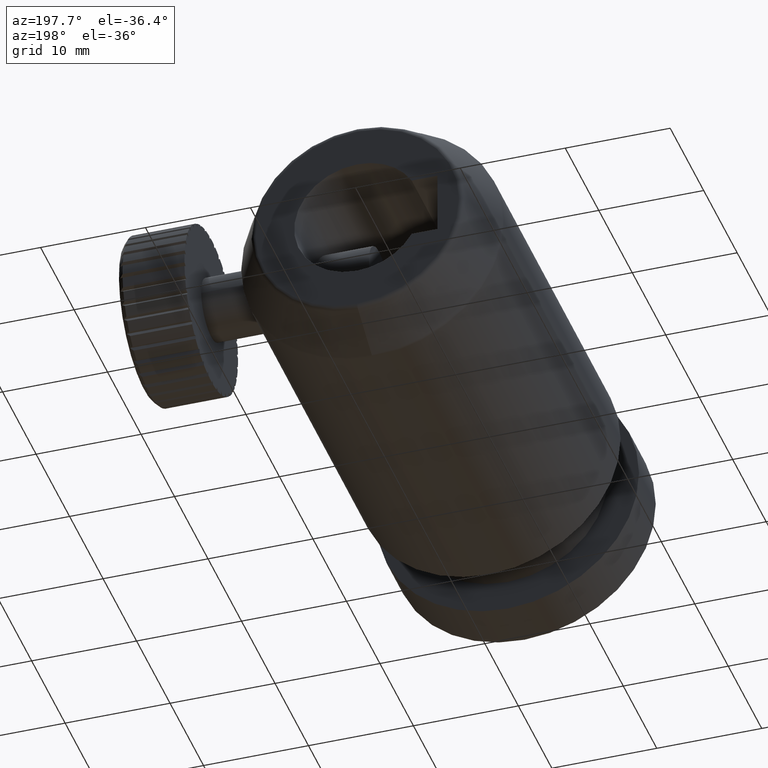
[diagram: clean part render]
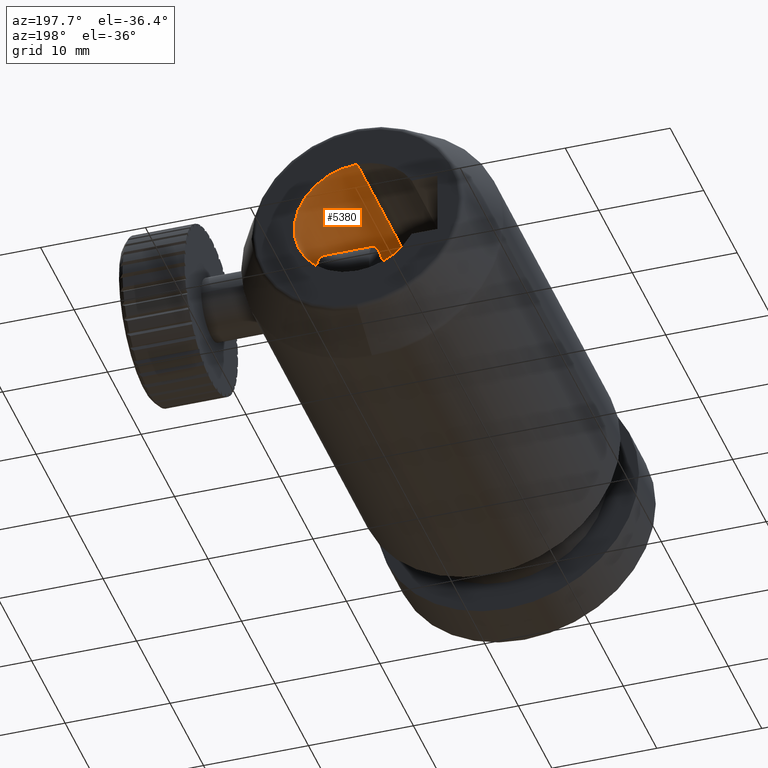
[diagram: same view with one face highlighted and labeled with its STEP entity id]
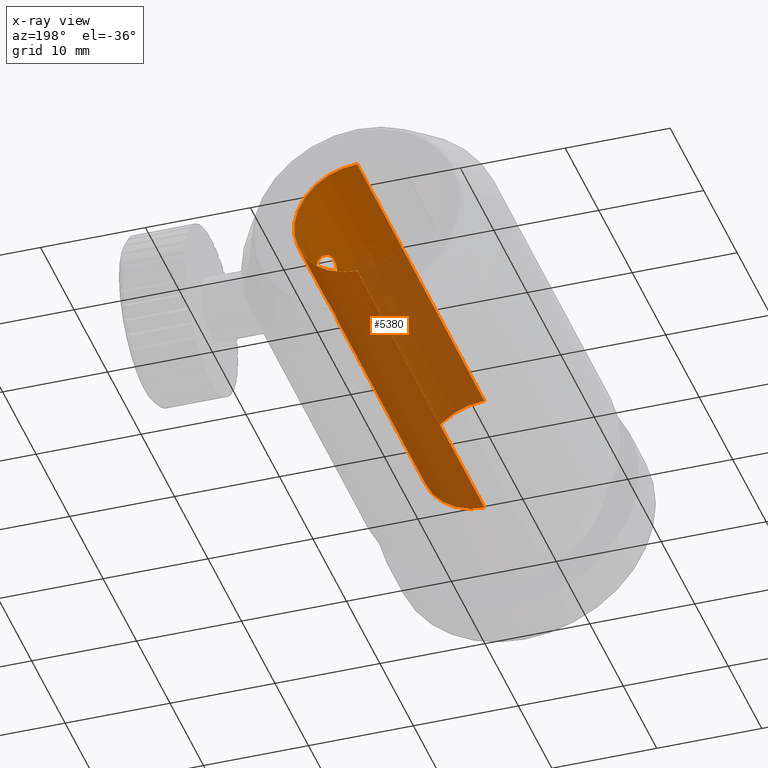
[diagram: x-ray of the same camera — body ghosted, the highlighted face saturated]
A machine part, auxiliary view. The second image highlights one B-rep face of the part: STEP entity #5380.
The next image is the same camera in x-ray: the body ghosted, the highlighted face saturated — about 66% of this face is hidden behind the body in this view.
In plain terms, the highlighted cylindrical surface (partial cylindrical patch) has radius 6 mm, axis along (-0, 1, -0).
Its self-contained STEP definition (entity closure, byte-faithful):
#4 = CARTESIAN_POINT ( 'NONE',  ( 2.547751776662664280, 31.15613699603495235, 1.714058140914828554 ) ) ;
#35 = CARTESIAN_POINT ( 'NONE',  ( 2.702631931329155801, 22.68638794039016560, -1.049999999999998712 ) ) ;
#103 = CARTESIAN_POINT ( 'NONE',  ( -3.204778668925408969, 0.1863879403901664289, -6.000000000000000000 ) ) ;
#211 = CIRCLE ( 'NONE', #7447, 6.000000000000000000 ) ;
#221 = CARTESIAN_POINT ( 'NONE',  ( 2.692443910880817359, 31.47616862709830343, -1.120484387102519852 ) ) ;
#258 = EDGE_LOOP ( 'NONE', ( #1626, #7667, #8868, #6352 ) ) ;
#294 = CARTESIAN_POINT ( 'NONE',  ( 2.790204656259699156, 23.70863976909626203, -0.2760449152292644981 ) ) ;
#301 = CARTESIAN_POINT ( 'NONE',  ( 2.736979652189075018, 22.04123358959404655, 0.8396474912968866500 ) ) ;
#407 = CARTESIAN_POINT ( 'NONE',  ( 2.763918529170111604, 25.74938038066899892, -0.6435205437008394425 ) ) ;
#439 = EDGE_CURVE ( 'NONE', #7796, #2594, #6077, .T. ) ;
#490 = ORIENTED_EDGE ( 'NONE', *, *, #4748, .T. ) ;
#512 = CARTESIAN_POINT ( 'NONE',  ( 2.264188080577189677, 26.97317400402131327, 2.470366775172140539 ) ) ;
#541 = CARTESIAN_POINT ( 'NONE',  ( 2.027301316470032866, 29.32903637472527336, -2.937089543439383998 ) ) ;
#556 = CARTESIAN_POINT ( 'NONE',  ( 2.793337916950582756, 25.69015654449285790, 0.1503243900348061879 ) ) ;
#650 = FACE_OUTER_BOUND ( 'NONE', #258, .T. ) ;
#691 = CARTESIAN_POINT ( 'NONE',  ( 2.193700885187201521, 30.16033308839928750, 2.620174384405280499 ) ) ;
#851 = B_SPLINE_CURVE_WITH_KNOTS ( 'NONE', 3,
 ( #2103, #7259, #7043, #945, #301, #8721, #3771, #3518, #3096, #5174, #2415, #4476, #4906, #6351, #2148, #7307, #4521, #35 ),
 .UNSPECIFIED., .F., .F.,
 ( 4, 2, 2, 2, 2, 2, 2, 2, 4 ),
 ( 0.003289109796769994296, 0.003700144802632564841, 0.004111179808495134952, 0.004522214814357705497, 0.004933249820220276909, 0.005344284826082847453, 0.005755319831945417131, 0.006166354837807988543, 0.006577389843670558220 ),
 .UNSPECIFIED. ) ;
#910 = CARTESIAN_POINT ( 'NONE',  ( 2.788296377881609889, 31.67252674492440079, -0.3514876151172002250 ) ) ;
#936 = CARTESIAN_POINT ( 'NONE',  ( 2.702631931329155801, 22.82542872181372573, -1.049999999999998712 ) ) ;
#945 = CARTESIAN_POINT ( 'NONE',  ( 2.724869483251549429, 22.15806403709771999, 0.9176539808078110205 ) ) ;
#1080 = CARTESIAN_POINT ( 'NONE',  ( 2.773199088915685451, 23.60368112593390677, 0.5292065132038646924 ) ) ;
#1091 = VECTOR ( 'NONE', #3112, 1000.000000000000000 ) ;
#1099 = CARTESIAN_POINT ( 'NONE',  ( 2.342426007084903894, 26.73880959289149217, -2.290084783032084292 ) ) ;
#1104 = CARTESIAN_POINT ( 'NONE',  ( -3.204778668925408969, 0.1863879403901664289, -6.000000000000000000 ) ) ;
#1147 = CARTESIAN_POINT ( 'NONE',  ( 2.016731120927278464, 28.13860092968340254, -2.956168105736093121 ) ) ;
#1221 = CARTESIAN_POINT ( 'NONE',  ( 2.793337916950582311, 31.68261933628746618, -0.1503243900347969175 ) ) ;
#1234 = CARTESIAN_POINT ( 'NONE',  ( 2.702631931329154913, 22.68638794039016560, 1.049999999999998712 ) ) ;
#1249 = CARTESIAN_POINT ( 'NONE',  ( 2.773064880393451226, 25.73064065751154317, 0.5502589692985204728 ) ) ;
#1258 = FACE_BOUND ( 'NONE', #3865, .T. ) ;
#1297 = CARTESIAN_POINT ( 'NONE',  ( 1.987712111674456494, 28.64446526940829685, 3.006357672071108489 ) ) ;
#1339 = CARTESIAN_POINT ( 'NONE',  ( 2.793337916950582311, 31.68261933628746618, -0.1503243900347969175 ) ) ;
#1346 = CARTESIAN_POINT ( 'NONE',  ( 2.702631931329155801, 22.68638794039016560, -1.049999999999998712 ) ) ;
#1458 = AXIS2_PLACEMENT_3D ( 'NONE', #8037, #7361, #3056 ) ;
#1626 = ORIENTED_EDGE ( 'NONE', *, *, #439, .F. ) ;
#1672 = CARTESIAN_POINT ( 'NONE',  ( 2.790291452584397369, 23.70916576417290500, 0.2746121720547669010 ) ) ;
#1691 = CARTESIAN_POINT ( 'NONE',  ( 2.264464282484345059, 30.40049681843168372, -2.469762971496876958 ) ) ;
#1740 = CARTESIAN_POINT ( 'NONE',  ( 2.419185130881056356, 30.84199367276183068, -2.095310348456739913 ) ) ;
#1785 = CARTESIAN_POINT ( 'NONE',  ( 2.055435326124538165, 29.52445625841461307, -2.887184955831219035 ) ) ;
#1810 = CARTESIAN_POINT ( 'NONE',  ( 2.773226246831651309, 23.60383903165391217, -0.5286616041059223337 ) ) ;
#1860 = CARTESIAN_POINT ( 'NONE',  ( 2.795212181003967178, 23.73633565426865388, -0.1376661761938282047 ) ) ;
#1941 = CARTESIAN_POINT ( 'NONE',  ( 2.568412252449911559, 26.16829067948027543, 1.642151394677414888 ) ) ;
#1959 = VERTEX_POINT ( 'NONE', #4111 ) ;
#1985 = CARTESIAN_POINT ( 'NONE',  ( 2.798377563096178466, 31.69270813823187893, 0.05076330522112098426 ) ) ;
#1991 = DIRECTION ( 'NONE',  ( -0.0000000000000000000, 1.000000000000000000, -0.0000000000000000000 ) ) ;
#2029 = CARTESIAN_POINT ( 'NONE',  ( 2.071607732925842882, 29.62247019038391116, 2.857078168494814108 ) ) ;
#2103 = CARTESIAN_POINT ( 'NONE',  ( 2.702631931329154913, 22.68638794039016560, 1.049999999999998712 ) ) ;
#2148 = CARTESIAN_POINT ( 'NONE',  ( 2.724981353639340131, 22.15684323613021434, -0.9169395795735519883 ) ) ;
#2415 = CARTESIAN_POINT ( 'NONE',  ( 2.790271166322926266, 21.66373687305394213, -0.2748916948378039571 ) ) ;
#2454 = CARTESIAN_POINT ( 'NONE',  ( 2.702631931329154913, 22.68638794039016560, 1.049999999999998712 ) ) ;
#2520 = CARTESIAN_POINT ( 'NONE',  ( 1.999162052702132764, 28.33882975607626520, -2.986491318808678130 ) ) ;
#2592 = DIRECTION ( 'NONE',  ( 0.0000000000000000000, 0.0000000000000000000, 1.000000000000000000 ) ) ;
#2594 = VERTEX_POINT ( 'NONE', #6812 ) ;
#2604 = CARTESIAN_POINT ( 'NONE',  ( 2.241088020144854198, 27.04960887856779905, -2.521607430965550289 ) ) ;
#2665 = CARTESIAN_POINT ( 'NONE',  ( 2.636520769543432063, 31.35637539359982640, 1.381601501156437539 ) ) ;
#2710 = CARTESIAN_POINT ( 'NONE',  ( 2.418524056799679745, 26.53247253308246556, 2.097104086177213667 ) ) ;
#2725 = CARTESIAN_POINT ( 'NONE',  ( -3.204778668925409857, 0.1863879403901664289, 6.000000000000000000 ) ) ;
#2747 = B_SPLINE_CURVE_WITH_KNOTS ( 'NONE', 3,
 ( #7228, #910, #3692, #8544, #221, #8733, #7320, #3017, #1740, #7996, #1691, #3784, #7547, #1785, #541, #3245, #3927, #2520, #1147, #4725, #4580, #8172, #2604, #1099, #6073, #5412, #7409, #8870, #3200, #4677, #407, #3329, #8782, #8216 ),
 .UNSPECIFIED., .F., .F.,
 ( 4, 2, 2, 2, 2, 2, 2, 2, 2, 2, 2, 2, 2, 2, 2, 2, 4 ),
 ( 0.004921798739472984380, 0.005517745451020357461, 0.006113692162567730543, 0.006709638874115103624, 0.007305585585662476705, 0.007901532297209849787, 0.008497479008757222868, 0.009093425720304595949, 0.009689372431851969031, 0.01028531914339934211, 0.01088126585494671519, 0.01147721256649408827, 0.01207315927804146309, 0.01266910598958883617, 0.01326505270113620925, 0.01386099941268358234, 0.01445694612423095542 ),
 .UNSPECIFIED. ) ;
#2754 = CARTESIAN_POINT ( 'NONE',  ( 2.497768351843328016, 31.03865836725232796, 1.871871531602847361 ) ) ;
#2801 = CARTESIAN_POINT ( 'NONE',  ( 2.471087715577780841, 26.40022530061916584, 1.952161725615502386 ) ) ;
#3017 = CARTESIAN_POINT ( 'NONE',  ( 2.471190999824589785, 30.97283518980138339, -1.951955433465731415 ) ) ;
#3056 = DIRECTION ( 'NONE',  ( 0.0000000000000000000, 0.0000000000000000000, 1.000000000000000000 ) ) ;
#3089 = CARTESIAN_POINT ( 'NONE',  ( 2.724925612182484524, 23.21548908124105282, 0.9173077234059252572 ) ) ;
#3096 = CARTESIAN_POINT ( 'NONE',  ( 2.795207256714232091, 21.63646836531952999, 0.1393224664696588733 ) ) ;
#3112 = DIRECTION ( 'NONE',  ( -0.0000000000000000000, 1.000000000000000000, -0.0000000000000000000 ) ) ;
#3178 = CARTESIAN_POINT ( 'NONE',  ( 2.761291167426881632, 23.52656267082453923, 0.6447563429004745661 ) ) ;
#3200 = CARTESIAN_POINT ( 'NONE',  ( 2.675791476807308999, 25.93238345362468777, -1.205742424742862307 ) ) ;
#3224 = EDGE_CURVE ( 'NONE', #1959, #2594, #211, .T. ) ;
#3245 = CARTESIAN_POINT ( 'NONE',  ( 1.993679956530189701, 28.93600387968794863, -2.996194900066218914 ) ) ;
#3249 = CARTESIAN_POINT ( 'NONE',  ( 2.793337916950582756, 25.69015654449285790, 0.1503243900348061879 ) ) ;
#3329 = CARTESIAN_POINT ( 'NONE',  ( 2.793413313815982235, 25.68989428527773811, -0.2473011744720179095 ) ) ;
#3403 = DIRECTION ( 'NONE',  ( -0.0000000000000000000, 1.000000000000000000, -0.0000000000000000000 ) ) ;
#3433 = CARTESIAN_POINT ( 'NONE',  ( 2.788351327327898144, 25.70013913327546362, 0.3492950688172285489 ) ) ;
#3455 = ORIENTED_EDGE ( 'NONE', *, *, #4470, .F. ) ;
#3490 = DIRECTION ( 'NONE',  ( 0.0000000000000000000, 0.0000000000000000000, 1.000000000000000000 ) ) ;
#3518 = CARTESIAN_POINT ( 'NONE',  ( 2.790238402145805985, 21.66391279368197686, 0.2757591581460009378 ) ) ;
#3578 = VECTOR ( 'NONE', #3403, 1000.000000000000000 ) ;
#3692 = CARTESIAN_POINT ( 'NONE',  ( 2.773197408350022375, 31.64240081968177520, -0.5487243954147218439 ) ) ;
#3771 = CARTESIAN_POINT ( 'NONE',  ( 2.773100661388338661, 21.76972713562487272, 0.5303126511260534137 ) ) ;
#3784 = CARTESIAN_POINT ( 'NONE',  ( 2.169265348915004665, 30.06693127180783520, -2.670580178769404345 ) ) ;
#3808 = CARTESIAN_POINT ( 'NONE',  ( 2.736915593155921922, 23.33108553576186495, 0.8402198104620131058 ) ) ;
#3865 = EDGE_LOOP ( 'NONE', ( #3455, #6489 ) ) ;
#3906 = CARTESIAN_POINT ( 'NONE',  ( 2.761180726637308069, 23.52565337440334403, -0.6456175596286826135 ) ) ;
#3927 = CARTESIAN_POINT ( 'NONE',  ( 1.987799104388935589, 28.73797853244293421, -3.006204500631123100 ) ) ;
#4030 = CARTESIAN_POINT ( 'NONE',  ( 2.725223539464457279, 25.82863450602604161, 0.9340622259345899847 ) ) ;
#4099 = EDGE_LOOP ( 'NONE', ( #490, #8932 ) ) ;
#4111 = CARTESIAN_POINT ( 'NONE',  ( -3.204778668925409857, 38.18638794039016204, 6.000000000000000000 ) ) ;
#4212 = AXIS2_PLACEMENT_3D ( 'NONE', #9029, #1991, #3490 ) ;
#4233 = LINE ( 'NONE', #2725, #3578 ) ;
#4470 = EDGE_CURVE ( 'NONE', #7364, #8431, #2747, .T. ) ;
#4475 = VERTEX_POINT ( 'NONE', #1234 ) ;
#4476 = CARTESIAN_POINT ( 'NONE',  ( 2.773228954987581041, 21.76890887797257434, -0.5287842844110033358 ) ) ;
#4514 = CARTESIAN_POINT ( 'NONE',  ( 2.707676247441563433, 22.96148482138378810, 1.022606074076157556 ) ) ;
#4521 = CARTESIAN_POINT ( 'NONE',  ( 2.702631931329155801, 22.54738223504414307, -1.049999999999998934 ) ) ;
#4580 = CARTESIAN_POINT ( 'NONE',  ( 2.107433690553072392, 27.56878947335784957, -2.790945079311701882 ) ) ;
#4605 = CARTESIAN_POINT ( 'NONE',  ( 2.795230454562061428, 23.73644007460795535, 0.1368674299136787842 ) ) ;
#4677 = CARTESIAN_POINT ( 'NONE',  ( 2.739426738513820681, 25.79899925854090270, -0.8374617053202741968 ) ) ;
#4680 = CIRCLE ( 'NONE', #1458, 6.000000000000000000 ) ;
#4725 = CARTESIAN_POINT ( 'NONE',  ( 2.070643046008701749, 27.75580726469893733, -2.858849433688390285 ) ) ;
#4748 = EDGE_CURVE ( 'NONE', #5468, #4475, #8449, .T. ) ;
#4834 = CARTESIAN_POINT ( 'NONE',  ( 2.675700450235784622, 31.44020366250387966, 1.206326334890833296 ) ) ;
#4906 = CARTESIAN_POINT ( 'NONE',  ( 2.761210623882137227, 21.84692389563094039, -0.6453352628379601663 ) ) ;
#4919 = CARTESIAN_POINT ( 'NONE',  ( 2.108680223525192243, 29.80967695259055361, 2.788556956402918896 ) ) ;
#5174 = CARTESIAN_POINT ( 'NONE',  ( 2.795235343936825601, 21.63630786687867413, -0.1381075776117783038 ) ) ;
#5380 = ADVANCED_FACE ( 'NONE', ( #650, #6143, #1258 ), #6969, .F. ) ;
#5412 = CARTESIAN_POINT ( 'NONE',  ( 2.497221231100769323, 26.33544108639590675, -1.873526990311608298 ) ) ;
#5447 = CARTESIAN_POINT ( 'NONE',  ( -3.204778668925409857, 38.18638794039016204, -7.703719777548943412E-31 ) ) ;
#5468 = VERTEX_POINT ( 'NONE', #1346 ) ;
#5476 = CARTESIAN_POINT ( 'NONE',  ( 2.315213740539983522, 26.81873319787327503, 2.355644899566322614 ) ) ;
#5519 = CARTESIAN_POINT ( 'NONE',  ( 2.169120427341901802, 27.30642555631366974, 2.670864619215430391 ) ) ;
#5910 = CARTESIAN_POINT ( 'NONE',  ( 2.737071981652370756, 23.33236325957647495, -0.8389901006760286384 ) ) ;
#5959 = CARTESIAN_POINT ( 'NONE',  ( 2.702631931329155801, 22.68638794039016560, -1.049999999999998712 ) ) ;
#6073 = CARTESIAN_POINT ( 'NONE',  ( 2.395511516948308994, 26.59416462143006399, -2.158623653472536486 ) ) ;
#6077 = LINE ( 'NONE', #1104, #1091 ) ;
#6100 = DIRECTION ( 'NONE',  ( 0.0000000000000000000, 1.000000000000000000, 0.0000000000000000000 ) ) ;
#6133 = CARTESIAN_POINT ( 'NONE',  ( 2.054739168305180996, 27.85269200973543136, 2.888443869340637793 ) ) ;
#6143 = FACE_BOUND ( 'NONE', #4099, .T. ) ;
#6184 = CARTESIAN_POINT ( 'NONE',  ( 2.343868749523885242, 30.63807449145772566, 2.286613183127729432 ) ) ;
#6271 = CARTESIAN_POINT ( 'NONE',  ( 2.764147960775318325, 31.62385880406742800, 0.6406667666658161231 ) ) ;
#6351 = CARTESIAN_POINT ( 'NONE',  ( 2.737122074050878151, 22.03997005702726142, -0.8386306719732304904 ) ) ;
#6352 = ORIENTED_EDGE ( 'NONE', *, *, #3224, .T. ) ;
#6489 = ORIENTED_EDGE ( 'NONE', *, *, #8005, .F. ) ;
#6664 = EDGE_CURVE ( 'NONE', #8674, #7796, #4680, .T. ) ;
#6812 = CARTESIAN_POINT ( 'NONE',  ( -3.204778668925408969, 38.18638794039016204, -6.000000000000000000 ) ) ;
#6825 = CARTESIAN_POINT ( 'NONE',  ( 1.993444630145121410, 28.44019201607598646, 2.996605578725341612 ) ) ;
#6874 = CARTESIAN_POINT ( 'NONE',  ( 2.125362150128975003, 27.48517098430219718, 2.755945339720750731 ) ) ;
#6969 = CYLINDRICAL_SURFACE ( 'NONE', #4212, 6.000000000000000000 ) ;
#7006 = CARTESIAN_POINT ( 'NONE',  ( 2.613687617284779385, 26.06716868544024379, 1.476078724759160909 ) ) ;
#7043 = CARTESIAN_POINT ( 'NONE',  ( 2.707710971405746569, 22.41082908062010759, 1.022390478283523807 ) ) ;
#7228 = CARTESIAN_POINT ( 'NONE',  ( 2.793337916950582311, 31.68261933628746618, -0.1503243900347969175 ) ) ;
#7259 = CARTESIAN_POINT ( 'NONE',  ( 2.702631931329155801, 22.54922606372809213, 1.049999999999998712 ) ) ;
#7307 = CARTESIAN_POINT ( 'NONE',  ( 2.707783930338097278, 22.40933170275548036, -1.021976334161408095 ) ) ;
#7320 = CARTESIAN_POINT ( 'NONE',  ( 2.569119535459441384, 31.20613193896794968, -1.639774746789251614 ) ) ;
#7361 = DIRECTION ( 'NONE',  ( 0.0000000000000000000, 1.000000000000000000, 0.0000000000000000000 ) ) ;
#7364 = VERTEX_POINT ( 'NONE', #1221 ) ;
#7409 = CARTESIAN_POINT ( 'NONE',  ( 2.546388168962792076, 26.21977071386086067, -1.718825247541438062 ) ) ;
#7436 = CARTESIAN_POINT ( 'NONE',  ( 2.707690919988269940, 22.96184444906067768, -1.022527078314889870 ) ) ;
#7447 = AXIS2_PLACEMENT_3D ( 'NONE', #5447, #6100, #2592 ) ;
#7547 = CARTESIAN_POINT ( 'NONE',  ( 2.126346077199884554, 29.89195763588955046, -2.754051049662654460 ) ) ;
#7655 = CARTESIAN_POINT ( 'NONE',  ( 2.692696350248533488, 25.89605262299253496, 1.119440361819472596 ) ) ;
#7667 = ORIENTED_EDGE ( 'NONE', *, *, #6664, .F. ) ;
#7796 = VERTEX_POINT ( 'NONE', #103 ) ;
#7996 = CARTESIAN_POINT ( 'NONE',  ( 2.316196422832416779, 30.55690477156552021, -2.353322824024182580 ) ) ;
#8005 = EDGE_CURVE ( 'NONE', #8431, #7364, #8208, .T. ) ;
#8037 = CARTESIAN_POINT ( 'NONE',  ( -3.204778668925409857, 0.1863879403901664289, -7.703719777548943412E-31 ) ) ;
#8111 = CARTESIAN_POINT ( 'NONE',  ( 2.724973061891032167, 23.21604371300142944, -0.9170074572192357110 ) ) ;
#8172 = CARTESIAN_POINT ( 'NONE',  ( 2.192896523123837316, 27.21522389101261652, -2.621846126123013487 ) ) ;
#8208 = B_SPLINE_CURVE_WITH_KNOTS ( 'NONE', 3,
 ( #556, #3433, #1249, #4030, #7655, #7006, #1941, #2801, #2710, #5476, #512, #5519, #6874, #6133, #8980, #6825, #1297, #9021, #8931, #2029, #4919, #691, #8276, #6184, #8322, #2754, #4, #2665, #4834, #8412, #6271, #9066, #1985, #1339 ),
 .UNSPECIFIED., .F., .F.,
 ( 4, 2, 2, 2, 2, 2, 2, 2, 2, 2, 2, 2, 2, 2, 2, 2, 4 ),
 ( 0.01445694612423095542, 0.01505266907842059930, 0.01564839203261024492, 0.01624411498679988880, 0.01683983794098953268, 0.01743556089517917657, 0.01803128384936882045, 0.01862700680355846433, 0.01922272975774810821, 0.01981845271193775210, 0.02041417566612739598, 0.02100989862031703986, 0.02160562157450668375, 0.02220134452869632763, 0.02279706748288597845, 0.02339279043707562580, 0.02398851339126527663 ),
 .UNSPECIFIED. ) ;
#8216 = CARTESIAN_POINT ( 'NONE',  ( 2.793337916950582756, 25.69015654449285790, 0.1503243900348061879 ) ) ;
#8276 = CARTESIAN_POINT ( 'NONE',  ( 2.242277966909008491, 30.32712503491254807, 2.519059751083682741 ) ) ;
#8322 = CARTESIAN_POINT ( 'NONE',  ( 2.396048122355771248, 30.78004368643461319, 2.157240090710941249 ) ) ;
#8412 = CARTESIAN_POINT ( 'NONE',  ( 2.739623639020834833, 31.57418730308598498, 0.8362649690291475979 ) ) ;
#8431 = VERTEX_POINT ( 'NONE', #3249 ) ;
#8445 = CARTESIAN_POINT ( 'NONE',  ( -3.204778668925409857, 0.1863879403901664289, 6.000000000000000000 ) ) ;
#8449 = B_SPLINE_CURVE_WITH_KNOTS ( 'NONE', 3,
 ( #5959, #936, #7436, #8111, #5910, #3906, #1810, #294, #1860, #4605, #1672, #1080, #3178, #3808, #3089, #4514, #8760, #2454 ),
 .UNSPECIFIED., .F., .F.,
 ( 4, 2, 2, 2, 2, 2, 2, 2, 4 ),
 ( 0.0000000000000000000, 0.0004111387245962492870, 0.0008222774491924985741, 0.001233416173788747915, 0.001644554898384997148, 0.002055693622981246381, 0.002466832347577495831, 0.002877971072173744847, 0.003289109796769994296 ),
 .UNSPECIFIED. ) ;
#8544 = CARTESIAN_POINT ( 'NONE',  ( 2.725536528972252182, 31.54478828122355694, -0.9320182917650385868 ) ) ;
#8632 = EDGE_CURVE ( 'NONE', #4475, #5468, #851, .T. ) ;
#8674 = VERTEX_POINT ( 'NONE', #8445 ) ;
#8721 = CARTESIAN_POINT ( 'NONE',  ( 2.761116767141250872, 21.84755509416934061, 0.6462132017325064037 ) ) ;
#8733 = CARTESIAN_POINT ( 'NONE',  ( 2.614235701343369467, 31.30680209955429660, -1.473699825650517603 ) ) ;
#8760 = CARTESIAN_POINT ( 'NONE',  ( 2.702631931329154913, 22.82358442786629027, 1.049999999999998934 ) ) ;
#8782 = CARTESIAN_POINT ( 'NONE',  ( 2.798326379568272237, 25.68017020618596646, -0.04872102340915052815 ) ) ;
#8868 = ORIENTED_EDGE ( 'NONE', *, *, #9087, .T. ) ;
#8870 = CARTESIAN_POINT ( 'NONE',  ( 2.636336524426555084, 26.01676114119269911, -1.382625591692741240 ) ) ;
#8931 = CARTESIAN_POINT ( 'NONE',  ( 2.017245784922973240, 29.23914097177312499, 2.955268130972213303 ) ) ;
#8932 = ORIENTED_EDGE ( 'NONE', *, *, #8632, .T. ) ;
#8980 = CARTESIAN_POINT ( 'NONE',  ( 2.027278809695375550, 28.04333862210977202, 2.937132104937718591 ) ) ;
#9021 = CARTESIAN_POINT ( 'NONE',  ( 1.999818025561627799, 29.04363261283895170, 2.985350935278802798 ) ) ;
#9029 = CARTESIAN_POINT ( 'NONE',  ( -3.204778668925409857, 0.1863879403901664289, -7.703719777548943412E-31 ) ) ;
#9066 = CARTESIAN_POINT ( 'NONE',  ( 2.793260845011416915, 31.68257351123684273, 0.2491204646611459572 ) ) ;
#9087 = EDGE_CURVE ( 'NONE', #8674, #1959, #4233, .T. ) ;